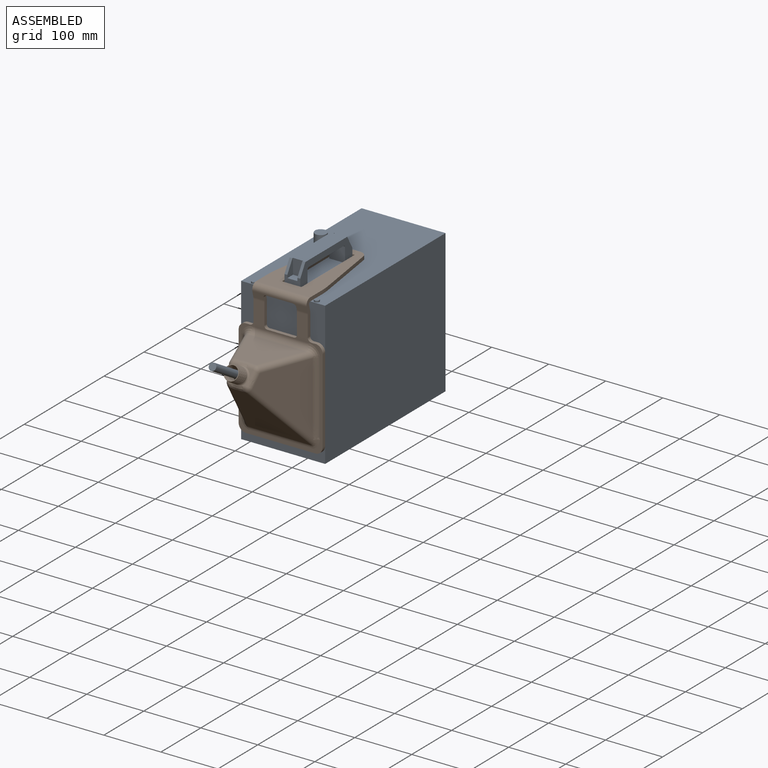
[diagram: assembled view]
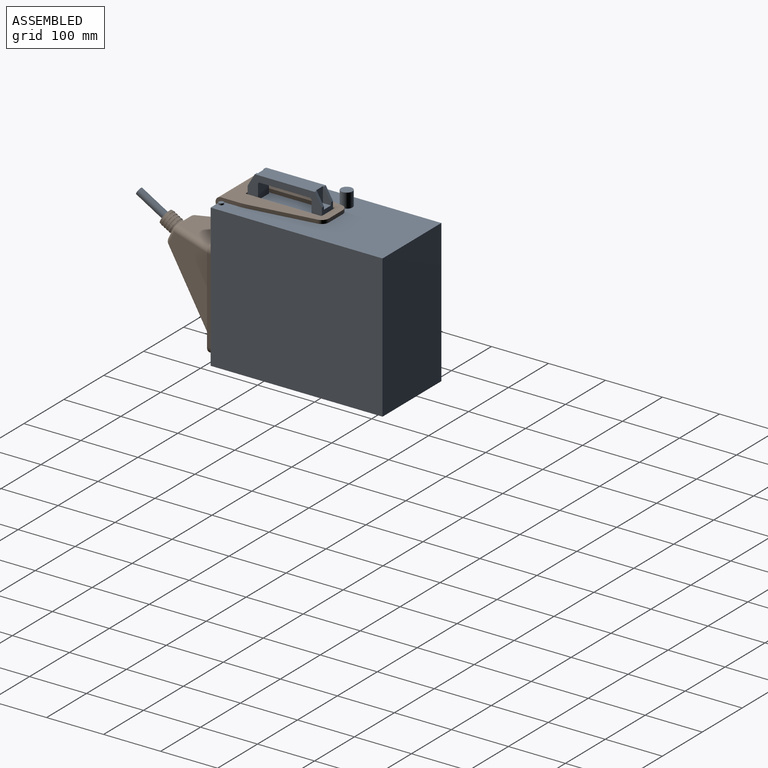
[diagram: assembled view, second angle]
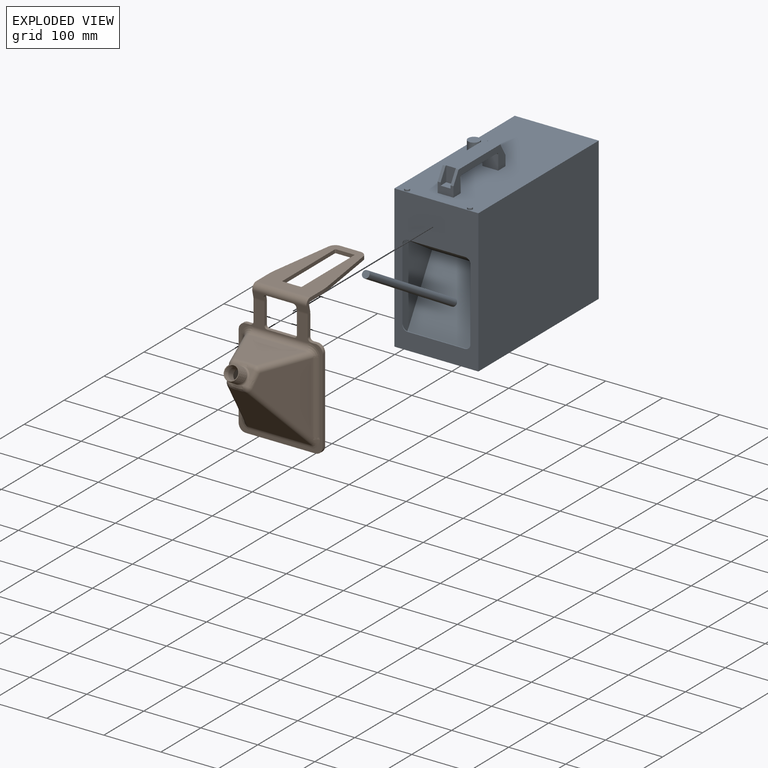
[diagram: exploded view]
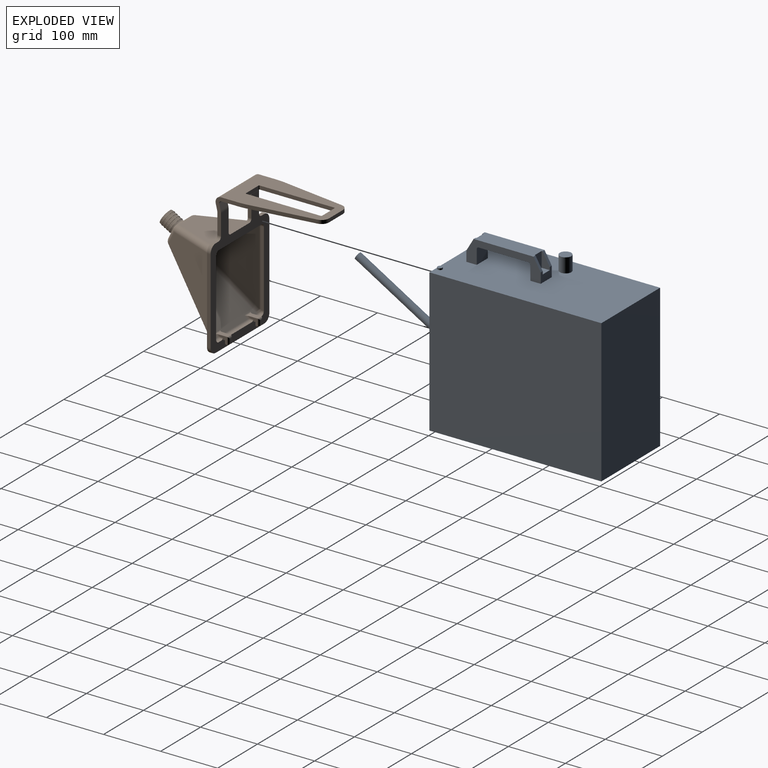
[diagram: exploded view, second angle]
ASSEMBLY  parts=2 mates=2
PART A: 50 faces, bbox 147.3x481.8x290.4 mm
  f0: plane 104.98x27.76mm, normal (0,0,1), area 2861mm2, adj f2,f3,f4,f5,f30,f31,f32,f33
  f1: plane 27.76x18.03mm, normal (0,-1,0), area 411.6mm2, adj f2,f4,f5,f10,f30,f37,f38,f39
  f2: plane 21.59x12.7mm, normal (0,-0.86,0.51), area 128.2mm2, adj f0,f1,f5,f37
  f3: plane 21.59x12.7mm, normal (0,0.86,0.51), area 128.2mm2, adj f0,f4,f24,f33
  f4: plane 130.38x39.62mm, normal (1,0,0), area 2222.7mm2, adj f0,f1,f3,f10,f24,f25,f26,f27
  f5: plane 130.38x39.62mm, normal (-1,0,0), area 2222.7mm2, adj f0,f1,f2,f10,f24,f25,f26,f27
  f6: plane 250.83x147.32mm, normal (0,-1,0), area 19624.3mm2, adj f7,f9,f10,f11,f12,f13,f14,f15
  f7: plane 301.63x250.83mm, normal (1,0,0), area 75655.1mm2, adj f6,f8,f10,f11
  f8: plane 250.83x147.32mm, normal (0,1,0), area 36951.5mm2, adj f7,f9,f10,f11
  f9: plane 301.63x250.83mm, normal (-1,0,0), area 75655.1mm2, adj f6,f8,f10,f11
  f10: plane 301.63x147.32mm, normal (0,0,1), area 42983.5mm2, adj f1,f4,f5,f6,f7,f8,f9,f20
  f11: plane 301.63x147.32mm, normal (0,0,-1), area 44435.4mm2, adj f6,f7,f8,f9
  f12: plane 156.72x74.42mm, normal (-1,0,0), area 6378.3mm2, adj f6,f13,f19,f40,f41,f42,f44,f45
  f13: cylinder r=9.53mm len=9.53mm, axis (0,-1,0), area 17.9mm2, adj f6,f12,f14,f42
  f14: plane 100.33x1.19mm, normal (0,0,-1), area 119.8mm2, adj f6,f13,f15,f44
  f15: cylinder r=9.53mm len=9.53mm, axis (0,-1,0), area 17.9mm2, adj f6,f14,f16,f43
  f16: plane 156.72x74.42mm, normal (1,0,0), area 6378.3mm2, adj f6,f15,f17,f40,f41,f43,f44,f45
  f17: cylinder r=9.53mm len=9.53mm, axis (0,-1,0), area 17.9mm2, adj f6,f16,f18,f40
  f18: plane 100.33x1.19mm, normal (0,0,1), area 119.8mm2, adj f6,f17,f19,f40
  f19: cylinder r=9.53mm len=9.53mm, axis (0,-1,0), area 17.9mm2, adj f6,f12,f18,f40
  f20: cylinder r=4.32mm len=8.64mm, axis (0,0,-1), area 75.8mm2, adj f10,f21
  f21: plane 8.64x8.64mm, normal (0,0,1), area 58.6mm2, adj f20
  f22: cylinder r=4.32mm len=8.64mm, axis (0,0,-1), area 75.8mm2, adj f10,f23
  f23: plane 8.64x8.64mm, normal (0,0,1), area 58.6mm2, adj f22
  f24: plane 27.76x18.03mm, normal (0,1,0), area 411.6mm2, adj f3,f4,f5,f10,f31,f32,f33,f35
  f25: plane 27.76x25.27mm, normal (0,1,0), area 701.6mm2, adj f4,f5,f10,f29
  f26: plane 27.76x25.27mm, normal (0,-1,0), area 701.6mm2, adj f4,f5,f10,f27
  f27: cylinder r=3.17mm len=27.76mm, axis (1,0,0), area 138.5mm2, adj f4,f5,f26,f28
  f28: plane 87.63x27.76mm, normal (0,0,-1), area 2432.8mm2, adj f4,f5,f27,f29
  f29: cylinder r=3.17mm len=27.76mm, axis (1,0,0), area 138.5mm2, adj f4,f5,f25,f28
  f30: plane 21.59x12.7mm, normal (0,-0.86,0.51), area 128.2mm2, adj f0,f1,f4,f38
  f31: plane 21.59x12.7mm, normal (0,0.86,0.51), area 128.2mm2, adj f0,f5,f24,f32
  f32: plane 26.67x14.22mm, normal (1,0,0), area 242.3mm2, adj f0,f24,f31,f34,f35
  f33: plane 26.67x14.22mm, normal (-1,0,0), area 242.3mm2, adj f0,f3,f24,f34,f35
  f34: plane 26.67x17.53mm, normal (0,1,0), area 467.4mm2, adj f0,f32,f33,f35
  f35: plane 17.53x14.22mm, normal (0,0,1), area 249.3mm2, adj f24,f32,f33,f34
  f36: plane 26.67x17.53mm, normal (0,-1,0), area 467.4mm2, adj f0,f37,f38,f39
  f37: plane 26.67x14.22mm, normal (1,0,0), area 242.3mm2, adj f0,f1,f2,f36,f39
  f38: plane 26.67x14.22mm, normal (-1,0,0), area 242.3mm2, adj f0,f1,f30,f36,f39
  f39: plane 17.53x14.22mm, normal (0,0,1), area 249.3mm2, adj f1,f36,f37,f38
  f40: plane 119.38x20.45mm, normal (0,1,0), area 1342.8mm2, adj f12,f16,f17,f18,f19,f41
  f41: plane 119.38x8.89mm, normal (0,0,1), area 1061.3mm2, adj f12,f16,f40,f45
  f42: plane 9.53x9.53mm, normal (0,1,0), area 19.5mm2, adj f12,f13,f44
  f43: plane 9.53x9.53mm, normal (0,1,0), area 19.5mm2, adj f15,f16,f44
  f44: plane 119.38x73.23mm, normal (0,-0.54,-0.84), area 10370.7mm2, adj f12,f14,f16,f42,f43,f45
  f45: plane 119.38x109.98mm, normal (0,-0.86,0.5), area 15084.5mm2, adj f12,f16,f41,f44,f46
  f46: cylinder r=6.35mm len=225.65mm, axis (0,0.86,-0.5), area 10134.1mm2, adj f45,f47
  f47: plane 12.7x10.96mm, normal (0,-0.86,0.5), area 126.7mm2, adj f46
  f48: cylinder r=10.16mm len=25.4mm, axis (0,0,-1), area 1621.5mm2, adj f10,f49
  f49: plane 20.32x20.32mm, normal (0,0,1), area 324.3mm2, adj f48
PART B: 181 faces, bbox 147.8x305.6x242.1 mm
  f0: plane 216.15x147.32mm, normal (0,-1,0), area 4598.4mm2, adj f3,f9,f10,f11,f28,f29,f30,f31
  f1: plane 216.15x147.32mm, normal (0,1,0), area 9739mm2, adj f4,f9,f10,f11,f12,f14,f23,f26
  f2: plane 95.76x11.21mm, normal (0,-0.97,-0.23), area 486.6mm2, adj f3,f9,f10,f153,f154,f174,f175,f176
  f3: cylinder r=12.7mm len=19.05mm, axis (-1,0,0), area 56.9mm2, adj f0,f2,f10,f174
  f4: cylinder r=19.05mm len=19.05mm, axis (-1,0,0), area 85.4mm2, adj f1,f5,f10,f174
  f5: plane 95.76x11.21mm, normal (0,0.97,0.23), area 573.5mm2, adj f4,f9,f10,f155,f156,f174,f175,f176
  f6: plane 168.28x95.25mm, normal (0,0,1), area 8941.7mm2, adj f7,f9,f10,f153,f157,f158,f159,f160
  f7: plane 35.2x6.35mm, normal (0,1,0), area 223.5mm2, adj f6,f8,f167,f168
  f8: plane 168.28x95.25mm, normal (0,0,-1), area 8941.7mm2, adj f7,f9,f10,f156,f157,f158,f159,f160
  f9: plane 61.47x38.38mm, normal (1,0,0), area 578.6mm2, adj f0,f1,f2,f5,f6,f8,f153,f154
  f10: plane 61.47x38.38mm, normal (-1,0,0), area 578.6mm2, adj f0,f1,f2,f3,f4,f5,f6,f8
  f11: plane 6.99x6.35mm, normal (0,0,1), area 44.4mm2, adj f0,f1,f112,f171
  f12: plane 60.33x3.59mm, normal (0,0,1), area 216.6mm2, adj f1,f13,f122,f140
  f13: cylinder r=6.35mm len=60.33mm, axis (1,0,0), area 314.1mm2, adj f12,f25,f123,f141
  f14: plane 7.3x3.59mm, normal (0,0,1), area 26.2mm2, adj f1,f52,f77,f128
  f15: cylinder r=6.35mm len=7.3mm, axis (1,0,0), area 38mm2, adj f25,f27,f76,f145
  f16: plane 11.27x10.14mm, normal (0,-0.87,0.5), area 46.6mm2, adj f47,f93,f94
  f17: plane 11.27x10.14mm, normal (0,-0.87,0.5), area 46.6mm2, adj f47,f84,f85
  f18: plane 4.8x4.11mm, normal (0,-0.87,0.5), area 6.6mm2, adj f47,f86,f87
  f19: plane 22.85x13.19mm, normal (0,0.87,-0.5), area 69mm2, adj f51,f60,f63,f64
  f20: plane 96.95x77.33mm, normal (0,0,1), area 5155.5mm2, adj f84,f88,f94,f95,f104,f105
  f21: plane 4.8x4.11mm, normal (0,-0.87,0.5), area 6.6mm2, adj f47,f98,f99
  f22: plane 111.68x107.82mm, normal (0,-0.73,-0.68), area 10245.4mm2, adj f87,f91,f97,f98,f106,f107
  f23: plane 106.68x93.49mm, normal (0,0,-1), area 6922.4mm2, adj f1,f54,f55,f56,f57,f63,f65,f67
  f24: plane 22.85x13.19mm, normal (0,0.87,-0.5), area 69mm2, adj f51,f67,f68,f71
  f25: plane 110.64x106.68mm, normal (0,0.73,0.68), area 9988.2mm2, adj f13,f15,f53,f59,f64,f66,f68,f75
  f26: plane 133.1x5.16mm, normal (-1,0,0), area 684.8mm2, adj f1,f52,f54,f79,f81
  f27: plane 7.3x3.59mm, normal (0,0,1), area 26.2mm2, adj f1,f15,f58,f146
  f28: plane 148.34x6.35mm, normal (1,0,0), area 941.9mm2, adj f0,f1,f111,f114
  f29: plane 6.99x6.35mm, normal (0,0,1), area 44.4mm2, adj f0,f1,f111,f172
  f30: plane 148.34x6.35mm, normal (-1,0,0), area 941.9mm2, adj f0,f1,f112,f113
  f31: plane 121.92x6.35mm, normal (0,0,-1), area 774.2mm2, adj f0,f1,f113,f114
  f32: plane 133.1x5.16mm, normal (1,0,0), area 684.8mm2, adj f1,f56,f58,f73,f75
  f33: plane 131.42x101.33mm, normal (0.93,0.36,0), area 8228.5mm2, adj f57,f59,f71,f73
  f34: plane 125.79x96.75mm, normal (-0.93,-0.36,0), area 7529.4mm2, adj f83,f85,f86,f95,f96,f97
  f35: plane 125.79x96.75mm, normal (0.93,-0.36,0), area 7529.4mm2, adj f92,f93,f99,f104,f107,f110
  f36: plane 131.42x101.33mm, normal (-0.93,0.36,0), area 8228.5mm2, adj f53,f55,f60,f81
  f37: cylinder r=12.7mm len=25.4mm, axis (0,0.87,-0.5), area 152mm2, adj f39,f47
  f38: cone r=12.7mm half-angle=9.9deg, axis (0,0.87,-0.5), area 425.9mm2, adj f39,f46
  f39: plane 27.18x23.54mm, normal (0,0.87,-0.5), area 73.4mm2, adj f37,f38
  f40: plane 25.4x22mm, normal (0,-0.87,0.5), area 86.4mm2, adj f41,f49
  f41: cone r=12.7mm half-angle=9.9deg, axis (0,0.87,-0.5), area 425.9mm2, adj f40,f42
  f42: plane 27.18x23.54mm, normal (0,0.87,-0.5), area 73.4mm2, adj f41,f43
  f43: cone r=12.7mm half-angle=9.9deg, axis (0,0.87,-0.5), area 425.9mm2, adj f42,f44
  f44: plane 27.18x23.54mm, normal (0,0.87,-0.5), area 73.4mm2, adj f43,f45
  f45: cone r=12.7mm half-angle=9.9deg, axis (0,0.87,-0.5), area 425.9mm2, adj f44,f46
  f46: plane 27.18x23.54mm, normal (0,0.87,-0.5), area 73.4mm2, adj f38,f45
  f47: torus R=15.88mm, axis (0,-0.87,0.5), area 411.2mm2, adj f16,f17,f18,f21,f37,f83,f88,f91
  f48: cylinder r=9.53mm len=22.65mm, axis (0,-0.87,0.5), area 736mm2, adj f50,f51
  f49: cone r=9.53mm half-angle=15deg, axis (0,-0.87,0.5), area 420.4mm2, adj f40,f50
  f50: torus R=22.23mm, axis (0,0.87,-0.5), area 202mm2, adj f48,f49
  f51: torus R=15.88mm, axis (0,-0.87,0.5), area 705.7mm2, adj f19,f24,f48,f65,f66
  f52: cylinder r=6.35mm len=6.35mm, axis (0,-1,0), area 35.8mm2, adj f1,f14,f26,f78
  f53: cylinder r=6.35mm len=112.9mm, axis (0.26,0.66,-0.71), area 1270.4mm2, adj f25,f36,f62,f80
  f54: cylinder r=6.35mm len=6.35mm, axis (0,1,0), area 51.4mm2, adj f1,f23,f26,f82
  f55: cylinder r=6.35mm len=90.45mm, axis (-0.36,-0.93,0), area 943.7mm2, adj f23,f36,f61,f82
  f56: cylinder r=6.35mm len=6.35mm, axis (0,-1,0), area 51.4mm2, adj f1,f23,f32,f72
  f57: cylinder r=6.35mm len=90.45mm, axis (-0.36,0.93,0), area 943.7mm2, adj f23,f33,f69,f72
  f58: cylinder r=6.35mm len=6.35mm, axis (0,1,0), area 35.8mm2, adj f1,f27,f32,f76
  f59: cylinder r=6.35mm len=112.9mm, axis (0.26,-0.66,0.71), area 1270.4mm2, adj f25,f33,f70,f74
  f60: cylinder r=6.35mm len=26.03mm, axis (-0.19,-0.49,-0.85), area 213.5mm2, adj f19,f36,f61,f62
  f61: sphere r=6.35mm, area 33.7mm2, adj f55,f60,f63
  f62: sphere r=6.35mm, area 38.7mm2, adj f53,f60,f64
  f63: cylinder r=6.35mm len=11.31mm, axis (1,0,0), area 75.2mm2, adj f19,f23,f61,f65
  f64: cylinder r=6.35mm len=7.51mm, axis (-1,0,0), area 32.1mm2, adj f19,f25,f62,f66
  f65: bspline ~18.63x5.84mm, area 91.4mm2, adj f23,f51,f63,f67
  f66: bspline ~23.93x8.11mm, area 136.6mm2, adj f25,f51,f64,f68
  f67: cylinder r=6.35mm len=11.31mm, axis (1,0,0), area 75.2mm2, adj f23,f24,f65,f69
  f68: cylinder r=6.35mm len=7.51mm, axis (-1,0,0), area 32.1mm2, adj f24,f25,f66,f70
  f69: sphere r=6.35mm, area 33.7mm2, adj f57,f67,f71
  f70: sphere r=6.35mm, area 38.7mm2, adj f59,f68,f71
  f71: cylinder r=6.35mm len=26.03mm, axis (-0.19,0.49,0.85), area 213.5mm2, adj f24,f33,f69,f70
  f72: sphere r=6.35mm, area 15mm2, adj f56,f57,f73
  f73: cylinder r=6.35mm len=131.42mm, axis (0,0,-1), area 310.5mm2, adj f32,f33,f72,f74
  f74: sphere r=6.35mm, area 9.1mm2, adj f59,f73,f75
  f75: cylinder r=6.35mm len=6.35mm, axis (0,-0.68,0.73), area 22.9mm2, adj f25,f32,f74,f76
  f76: sphere r=6.35mm, area 33.1mm2, adj f15,f58,f75
  f77: cylinder r=6.35mm len=7.3mm, axis (1,0,0), area 38mm2, adj f14,f25,f78,f127
  f78: sphere r=6.35mm, area 33.1mm2, adj f52,f77,f79
  f79: cylinder r=6.35mm len=6.35mm, axis (0,-0.68,0.73), area 22.9mm2, adj f25,f26,f78,f80
  f80: sphere r=6.35mm, area 9.1mm2, adj f53,f79,f81
  f81: cylinder r=6.35mm len=131.42mm, axis (0,0,-1), area 310.5mm2, adj f26,f36,f80,f82
  f82: sphere r=6.35mm, area 15mm2, adj f54,f55,f81
  f83: bspline ~14.32x11.68mm, area 83.4mm2, adj f34,f47,f85,f86
  f84: cylinder r=9.53mm len=10.14mm, axis (1,0,0), area 101.1mm2, adj f17,f20,f88,f89
  f85: cylinder r=9.53mm len=16.03mm, axis (-0.19,0.49,0.85), area 158mm2, adj f17,f34,f83,f89
  f86: cylinder r=9.53mm len=9.95mm, axis (-0.19,0.49,0.85), area 67.2mm2, adj f18,f34,f83,f90
  f87: cylinder r=9.53mm len=11.26mm, axis (-1,0,0), area 36.7mm2, adj f18,f22,f90,f91
  f88: bspline ~19.9x8.73mm, area 144.9mm2, adj f20,f47,f84,f94
  f89: sphere r=9.53mm, area 75.9mm2, adj f84,f85,f95
  f90: sphere r=9.53mm, area 80.6mm2, adj f86,f87,f97
  f91: bspline ~23.77x12.11mm, area 210.6mm2, adj f22,f47,f87,f98
  f92: bspline ~21.39x15.97mm, area 83.4mm2, adj f35,f47,f93,f99
  f93: cylinder r=9.53mm len=16.03mm, axis (-0.19,-0.49,-0.85), area 158mm2, adj f16,f35,f92,f100
  f94: cylinder r=9.53mm len=10.14mm, axis (1,0,0), area 101.1mm2, adj f16,f20,f88,f100
  f95: cylinder r=9.53mm len=87.44mm, axis (-0.36,0.93,0), area 1308.3mm2, adj f20,f34,f89,f101
  f96: cylinder r=9.53mm len=125.79mm, axis (0,0,-1), area 1436.2mm2, adj f0,f34,f101,f102
  f97: cylinder r=9.53mm len=118.1mm, axis (0.26,-0.66,0.71), area 1918.7mm2, adj f22,f34,f90,f102
  f98: cylinder r=9.53mm len=11.26mm, axis (-1,0,0), area 36.7mm2, adj f21,f22,f91,f103
  f99: cylinder r=9.53mm len=9.95mm, axis (-0.19,-0.49,-0.85), area 67.2mm2, adj f21,f35,f92,f103
  f100: sphere r=9.53mm, area 75.9mm2, adj f93,f94,f104
  f101: bspline ~24x19.05mm, area 286.9mm2, adj f0,f95,f96,f105
  f102: bspline ~20.5x15.01mm, area 191.1mm2, adj f0,f96,f97,f106
  f103: sphere r=9.53mm, area 80.6mm2, adj f98,f99,f107
  f104: cylinder r=9.53mm len=87.44mm, axis (-0.36,-0.93,0), area 1308.3mm2, adj f20,f35,f100,f108
  f105: cylinder r=9.53mm len=96.95mm, axis (-1,0,0), area 1450.5mm2, adj f0,f20,f101,f108
  f106: cylinder r=9.53mm len=107.82mm, axis (1,0,0), area 771.2mm2, adj f0,f22,f102,f109
  f107: cylinder r=9.53mm len=118.1mm, axis (0.26,0.66,-0.71), area 1918.7mm2, adj f22,f35,f103,f109
  f108: bspline ~24x22.36mm, area 286.9mm2, adj f0,f104,f105,f110
  f109: bspline ~20.5x15.01mm, area 191.1mm2, adj f0,f106,f107,f110
  f110: cylinder r=9.53mm len=125.79mm, axis (0,0,1), area 1436.2mm2, adj f0,f35,f108,f109
  f111: cylinder r=12.7mm len=12.7mm, axis (0,-1,0), area 126.7mm2, adj f0,f1,f28,f29
  f112: cylinder r=12.7mm len=12.7mm, axis (0,1,0), area 126.7mm2, adj f0,f1,f11,f30
  f113: cylinder r=12.7mm len=12.7mm, axis (0,-1,0), area 126.7mm2, adj f0,f1,f30,f31
  f114: cylinder r=12.7mm len=12.7mm, axis (0,1,0), area 126.7mm2, adj f0,f1,f28,f31
  f115: plane 18.04x11.39mm, normal (0,0,1), area 171.9mm2, adj f117,f118,f124,f125,f126,f129
  f116: plane 9.53x3.81mm, normal (0,0,-1), area 36.3mm2, adj f1,f117,f118,f119
  f117: plane 14.92x12.7mm, normal (1,0,0), area 84.2mm2, adj f1,f115,f116,f119,f120,f126,f127,f128
  f118: plane 14.92x12.7mm, normal (-1,0,0), area 84.2mm2, adj f1,f115,f116,f119,f120,f122,f123,f124
  f119: plane 9.53x4.76mm, normal (0,-1,0), area 45.4mm2, adj f116,f117,f118,f152
  f120: plane 9.53x1.59mm, normal (0,0,-1), area 15.1mm2, adj f117,f118,f132,f152
  f121: plane 6.35x3.18mm, normal (0,1,0), area 20.2mm2, adj f129,f130,f131,f132
  f122: cylinder r=3.17mm len=3.59mm, axis (0,-1,0), area 17.9mm2, adj f1,f12,f118,f123
  f123: torus R=3.17mm, axis (1,0,0), area 21.2mm2, adj f13,f118,f122,f124
  f124: cylinder r=3.17mm len=7.51mm, axis (0,0.68,-0.73), area 25.5mm2, adj f25,f115,f118,f123,f125
  f125: cylinder r=3.17mm len=15.88mm, axis (-1,0,0), area 35.3mm2, adj f25,f115,f124,f126
  f126: cylinder r=3.17mm len=7.51mm, axis (0,-0.68,0.73), area 25.5mm2, adj f25,f115,f117,f125,f127
  f127: torus R=3.17mm, axis (1,0,0), area 21.2mm2, adj f77,f117,f126,f128
  f128: cylinder r=3.17mm len=3.59mm, axis (0,1,0), area 17.9mm2, adj f1,f14,f117,f127
  f129: cylinder r=3.17mm len=9.53mm, axis (-1,0,0), area 36mm2, adj f115,f121,f130,f131
  f130: cylinder r=3.17mm len=12.7mm, axis (0,0,-1), area 51.8mm2, adj f117,f121,f129,f132
  f131: cylinder r=3.17mm len=12.7mm, axis (0,0,1), area 51.8mm2, adj f118,f121,f129,f132
  f132: cylinder r=3.17mm len=9.53mm, axis (-1,0,0), area 36mm2, adj f120,f121,f130,f131
  f133: plane 18.04x11.39mm, normal (0,0,1), area 171.9mm2, adj f134,f135,f142,f143,f144,f147
  f134: plane 14.92x12.7mm, normal (-1,0,0), area 84.2mm2, adj f1,f133,f137,f138,f139,f144,f145,f146
  f135: plane 14.92x12.7mm, normal (1,0,0), area 84.2mm2, adj f1,f133,f137,f138,f139,f140,f141,f142
  f136: plane 6.35x3.18mm, normal (0,1,0), area 20.2mm2, adj f147,f148,f149,f150
  f137: plane 9.53x1.59mm, normal (0,0,-1), area 15.1mm2, adj f134,f135,f150,f151
  f138: plane 9.53x4.76mm, normal (0,-1,0), area 45.4mm2, adj f134,f135,f139,f151
  f139: plane 9.53x3.81mm, normal (0,0,-1), area 36.3mm2, adj f1,f134,f135,f138
  f140: cylinder r=3.17mm len=3.59mm, axis (0,-1,0), area 17.9mm2, adj f1,f12,f135,f141
  f141: torus R=3.17mm, axis (-1,0,0), area 21.2mm2, adj f13,f135,f140,f142
  f142: cylinder r=3.17mm len=7.51mm, axis (0,-0.68,0.73), area 25.5mm2, adj f25,f133,f135,f141,f143
  f143: cylinder r=3.17mm len=15.88mm, axis (-1,0,0), area 35.3mm2, adj f25,f133,f142,f144
  f144: cylinder r=3.17mm len=7.51mm, axis (0,0.68,-0.73), area 25.5mm2, adj f25,f133,f134,f143,f145
  f145: torus R=3.17mm, axis (-1,0,0), area 21.2mm2, adj f15,f134,f144,f146
  f146: cylinder r=3.17mm len=3.59mm, axis (0,1,0), area 17.9mm2, adj f1,f27,f134,f145
  f147: cylinder r=3.17mm len=9.53mm, axis (1,0,0), area 36mm2, adj f133,f136,f148,f149
  f148: cylinder r=3.17mm len=12.7mm, axis (0,0,1), area 51.8mm2, adj f134,f136,f147,f150
  f149: cylinder r=3.17mm len=12.7mm, axis (0,0,-1), area 51.8mm2, adj f135,f136,f147,f150
  f150: cylinder r=3.17mm len=9.53mm, axis (1,0,0), area 36mm2, adj f136,f137,f148,f149
  f151: cylinder r=1.59mm len=9.53mm, axis (1,0,0), area 23.8mm2, adj f134,f135,f137,f138
  f152: cylinder r=1.59mm len=9.53mm, axis (-1,0,0), area 23.8mm2, adj f117,f118,f119,f120
  f153: cylinder r=9.53mm len=95.25mm, axis (-1,0,0), area 1638.5mm2, adj f2,f6,f9,f10
  f154: cylinder r=12.7mm len=19.05mm, axis (-1,0,0), area 56.9mm2, adj f0,f2,f9,f175
  f155: cylinder r=19.05mm len=19.05mm, axis (-1,0,0), area 85.4mm2, adj f1,f5,f9,f175
  f156: cylinder r=3.17mm len=95.25mm, axis (-1,0,0), area 546.2mm2, adj f5,f8,f9,f10
  f157: plane 30.94x6.35mm, normal (0,1,0), area 196.5mm2, adj f6,f8,f161,f164
  f158: plane 130.38x6.35mm, normal (-1,0,0), area 827.9mm2, adj f6,f8,f161,f162
  f159: plane 30.94x6.35mm, normal (0,-1,0), area 196.5mm2, adj f6,f8,f162,f163
  f160: plane 130.38x6.35mm, normal (1,0,0), area 827.9mm2, adj f6,f8,f163,f164
  f161: cylinder r=1.59mm len=6.35mm, axis (0,0,1), area 15.8mm2, adj f6,f8,f157,f158
  f162: cylinder r=1.59mm len=6.35mm, axis (0,0,-1), area 15.8mm2, adj f6,f8,f158,f159
  f163: cylinder r=1.59mm len=6.35mm, axis (0,0,1), area 15.8mm2, adj f6,f8,f159,f160
  f164: cylinder r=1.59mm len=6.35mm, axis (0,0,-1), area 15.8mm2, adj f6,f8,f157,f160
  f165: plane 110.17x16.12mm, normal (-0.99,0.14,0), area 707mm2, adj f6,f8,f168,f170
  f166: plane 110.17x16.12mm, normal (0.99,0.14,0), area 707mm2, adj f6,f8,f167,f169
  f167: cylinder r=12.7mm len=12.57mm, axis (0,0,-1), area 115mm2, adj f6,f7,f8,f166
  f168: cylinder r=12.7mm len=12.57mm, axis (0,0,1), area 115mm2, adj f6,f7,f8,f165
  f169: cylinder r=127mm len=18.39mm, axis (0,0,1), area 117.2mm2, adj f6,f8,f9,f166
  f170: cylinder r=127mm len=18.39mm, axis (0,0,1), area 117.2mm2, adj f6,f8,f10,f165
  f171: cylinder r=6.35mm len=6.35mm, axis (0,1,0), area 63.3mm2, adj f0,f1,f10,f11
  f172: cylinder r=6.35mm len=6.35mm, axis (0,-1,0), area 63.3mm2, adj f0,f1,f9,f29
  f173: plane 46.99x6.35mm, normal (0,0,1), area 298.4mm2, adj f0,f1,f179,f180
  f174: plane 44.96x7.82mm, normal (1,0,0), area 286.4mm2, adj f0,f1,f2,f3,f4,f5,f178,f180
  f175: plane 44.96x7.82mm, normal (-1,0,0), area 286.4mm2, adj f0,f1,f2,f5,f154,f155,f177,f179
  f176: plane 46.99x6.53mm, normal (0,0,-1), area 306.8mm2, adj f2,f5,f177,f178
  f177: cylinder r=5.08mm len=7.75mm, axis (0,1,0), area 52.1mm2, adj f2,f5,f175,f176
  f178: cylinder r=5.08mm len=7.75mm, axis (0,-1,0), area 52.1mm2, adj f2,f5,f174,f176
  f179: cylinder r=5.08mm len=6.35mm, axis (0,-1,0), area 50.7mm2, adj f0,f1,f173,f175
  f180: cylinder r=5.08mm len=6.35mm, axis (0,1,0), area 50.7mm2, adj f0,f1,f173,f174
PLACE A at identity fixed
PLACE B t=(0,-150.81,102.49)mm
MATE planar A.f18 <-> B.f14  axis (0,0,1) through (0,-150.22,29.59)mm
MATE planar A.f16 <-> B.f32  axis (1,0,0) through (-59.69,-125.58,103.44)mm
